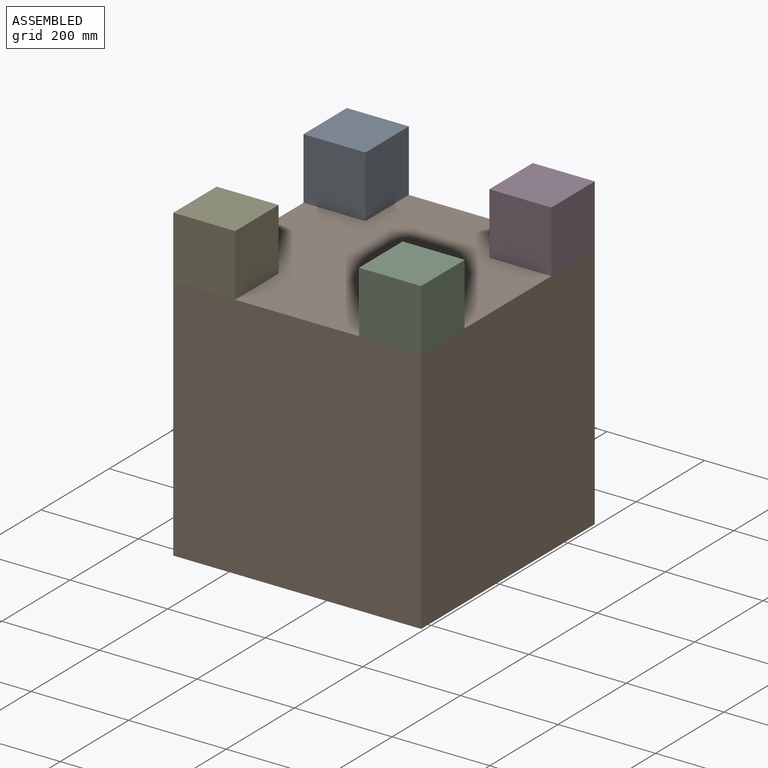
[diagram: assembled view]
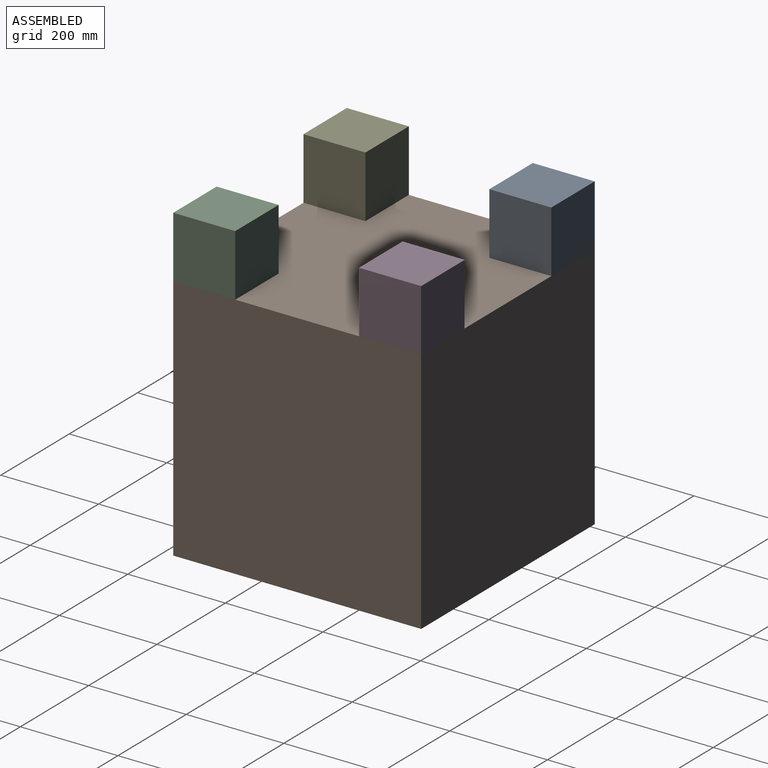
[diagram: assembled view, second angle]
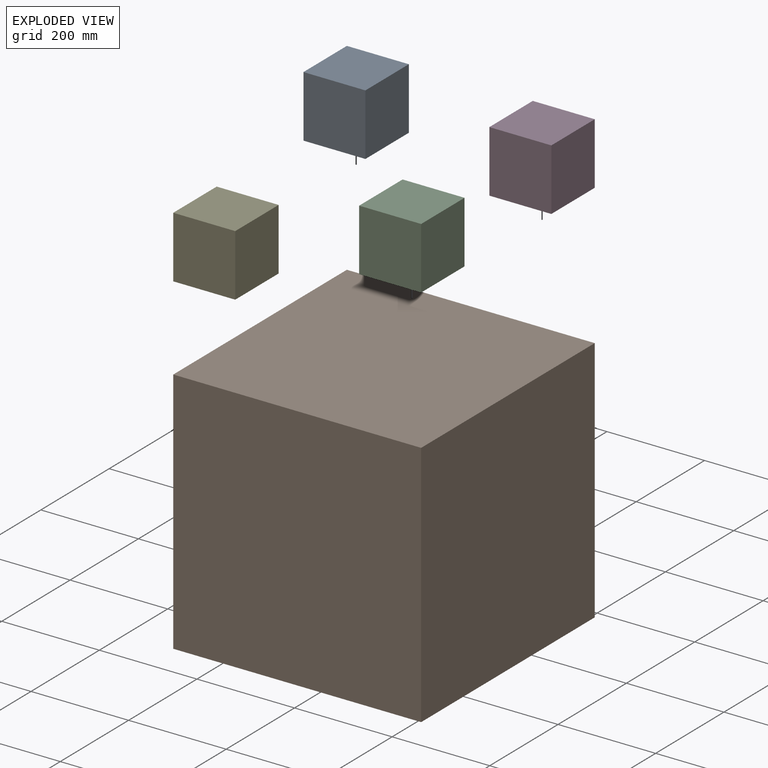
[diagram: exploded view]
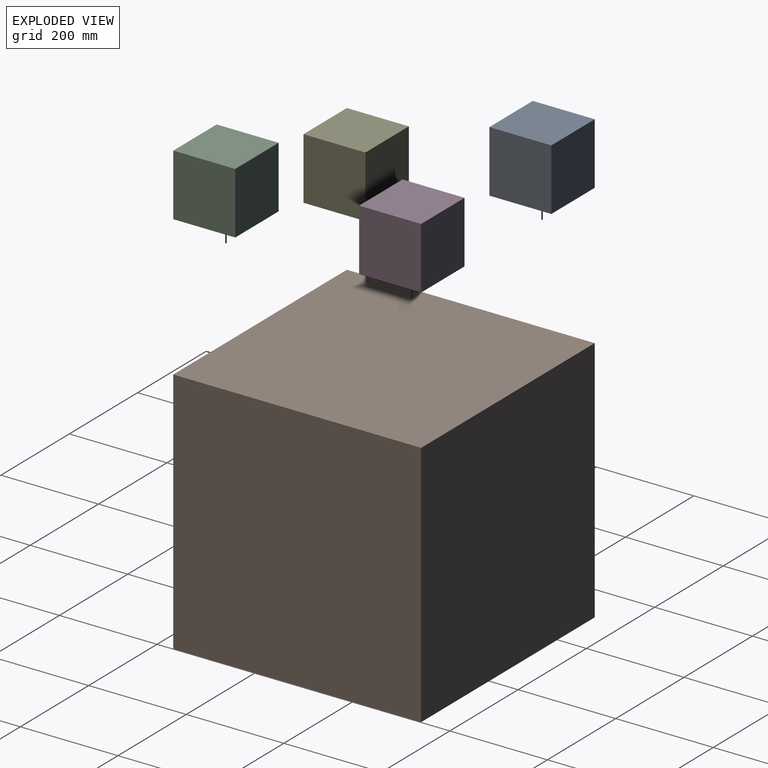
[diagram: exploded view, second angle]
ASSEMBLY  parts=5 mates=4
PART A: 6 faces, bbox 127x127x127 mm
  f0: plane 127x127mm, normal (0,-1,0), area 16129mm2, adj f1,f3,f4,f5
  f1: plane 127x127mm, normal (1,0,0), area 16129mm2, adj f0,f2,f4,f5
  f2: plane 127x127mm, normal (0,1,0), area 16129mm2, adj f1,f3,f4,f5
  f3: plane 127x127mm, normal (-1,0,0), area 16129mm2, adj f0,f2,f4,f5
  f4: plane 127x127mm, normal (0,0,1), area 16129mm2, adj f0,f1,f2,f3
  f5: plane 127x127mm, normal (0,0,-1), area 16129mm2, adj f0,f1,f2,f3
PART B: 6 faces, bbox 508x508x508 mm
  f0: plane 508x508mm, normal (-1,0,0), area 258064mm2, adj f1,f3,f4,f5
  f1: plane 508x508mm, normal (0,0,-1), area 258064mm2, adj f0,f2,f4,f5
  f2: plane 508x508mm, normal (1,0,0), area 258064mm2, adj f1,f3,f4,f5
  f3: plane 508x508mm, normal (0,0,1), area 258064mm2, adj f0,f2,f4,f5
  f4: plane 508x508mm, normal (0,-1,0), area 258064mm2, adj f0,f1,f2,f3
  f5: plane 508x508mm, normal (0,1,0), area 258064mm2, adj f0,f1,f2,f3
PART C: same geometry as A
PART D: same geometry as A
PART E: same geometry as A
PLACE A t=(-1365.11,-348.87,362.4)mm
PLACE B t=(-702.18,-241.6,109.05)mm
PLACE C t=(-984.11,-729.87,362.4)mm
PLACE D t=(-984.11,-348.87,362.4)mm
PLACE E t=(-1365.11,-729.87,362.4)mm
MATE fastened B.f3 <-> A.f5  axis (0,0,1) through (-1083.73,-241.6,362.4)mm
MATE fastened E.f5 <-> B.f3  axis (0,0,-1) through (-1083.73,-749.6,362.4)mm
MATE fastened B.f3 <-> C.f5  axis (0,0,1) through (-575.73,-749.6,362.4)mm
MATE fastened D.f5 <-> B.f3  axis (0,0,-1) through (-575.73,-241.6,362.4)mm
